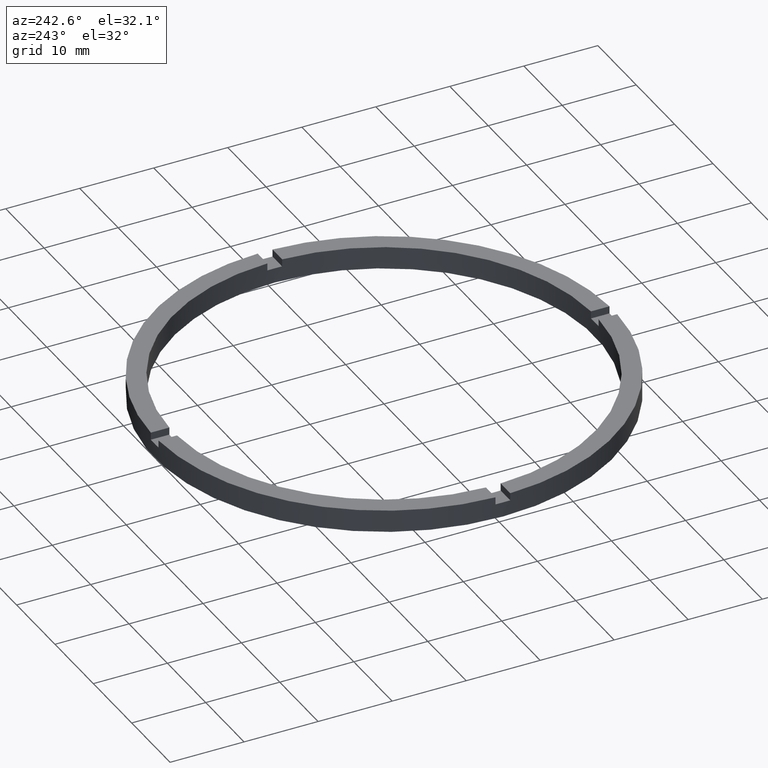
[diagram: clean part render]
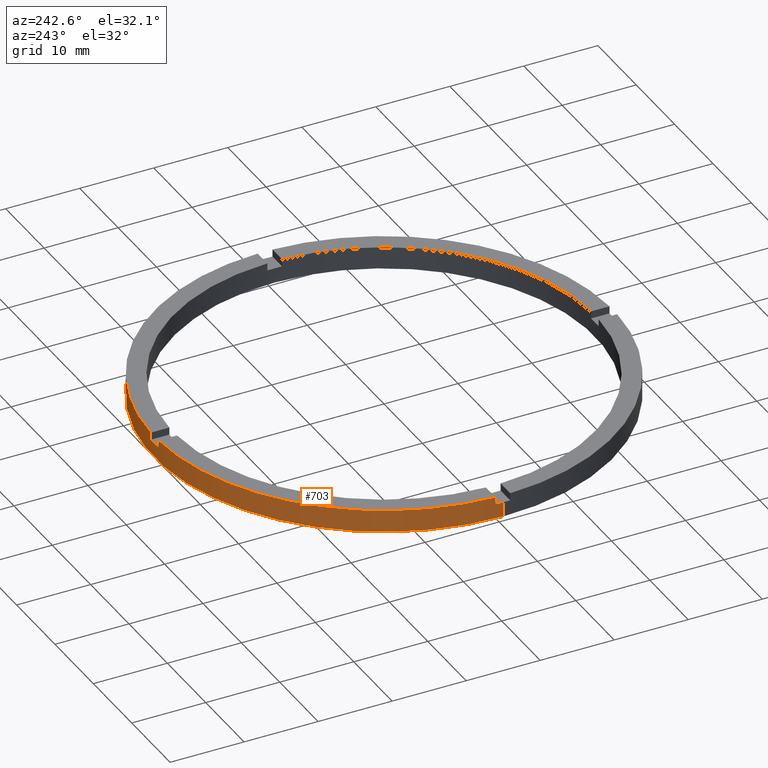
[diagram: same view with one face highlighted and labeled with its STEP entity id]
A machine part, auxiliary view. The second image highlights one B-rep face of the part: STEP entity #703.
In plain terms, the highlighted cylindrical surface (partial cylindrical patch) has radius 31 mm, axis along (-0, -0, -1).
Its self-contained STEP definition (entity closure, byte-faithful):
#12 = CARTESIAN_POINT ( 'NONE',  ( -31.00000000000000000, 0.000000000000000000, 0.000000000000000000 ) ) ;
#13 = DIRECTION ( 'NONE',  ( 0.000000000000000000, 0.000000000000000000, 1.000000000000000000 ) ) ;
#14 = DIRECTION ( 'NONE',  ( -0.000000000000000000, -0.000000000000000000, -1.000000000000000000 ) ) ;
#30 = VERTEX_POINT ( 'NONE', #80 ) ;
#32 = CARTESIAN_POINT ( 'NONE',  ( 0.000000000000000000, 0.000000000000000000, 3.000000000000000000 ) ) ;
#44 = VERTEX_POINT ( 'NONE', #271 ) ;
#45 = EDGE_CURVE ( 'NONE', #569, #309, #778, .T. ) ;
#67 = ORIENTED_EDGE ( 'NONE', *, *, #774, .F. ) ;
#72 = EDGE_CURVE ( 'NONE', #661, #672, #528, .T. ) ;
#73 = AXIS2_PLACEMENT_3D ( 'NONE', #764, #297, #100 ) ;
#76 = DIRECTION ( 'NONE',  ( 0.000000000000000000, 0.000000000000000000, 1.000000000000000000 ) ) ;
#80 = CARTESIAN_POINT ( 'NONE',  ( 31.00000000000000000, 3.796405077356795115E-15, 0.000000000000000000 ) ) ;
#86 = CARTESIAN_POINT ( 'NONE',  ( 0.9999999999999754641, 30.98386676965933617, 3.000000000000000000 ) ) ;
#91 = EDGE_CURVE ( 'NONE', #44, #672, #522, .T. ) ;
#100 = DIRECTION ( 'NONE',  ( 1.000000000000000000, 0.000000000000000000, 0.000000000000000000 ) ) ;
#106 = CARTESIAN_POINT ( 'NONE',  ( 0.9999999999999754641, 30.98386676965933617, 2.000000000000000000 ) ) ;
#115 = CARTESIAN_POINT ( 'NONE',  ( 0.000000000000000000, 0.000000000000000000, 0.000000000000000000 ) ) ;
#122 = DIRECTION ( 'NONE',  ( 0.000000000000000000, 0.000000000000000000, 1.000000000000000000 ) ) ;
#143 = CARTESIAN_POINT ( 'NONE',  ( -1.000000000000024425, 30.98386676965933617, 3.000000000000000000 ) ) ;
#146 = CIRCLE ( 'NONE', #73, 31.00000000000000000 ) ;
#151 = DIRECTION ( 'NONE',  ( -0.000000000000000000, -0.000000000000000000, -1.000000000000000000 ) ) ;
#156 = CARTESIAN_POINT ( 'NONE',  ( 0.000000000000000000, 0.000000000000000000, 3.000000000000000000 ) ) ;
#158 = AXIS2_PLACEMENT_3D ( 'NONE', #300, #597, #634 ) ;
#163 = ORIENTED_EDGE ( 'NONE', *, *, #416, .T. ) ;
#164 = AXIS2_PLACEMENT_3D ( 'NONE', #32, #350, #387 ) ;
#170 = CYLINDRICAL_SURFACE ( 'NONE', #545, 31.00000000000000000 ) ;
#173 = LINE ( 'NONE', #454, #447 ) ;
#174 = CIRCLE ( 'NONE', #649, 31.00000000000000000 ) ;
#176 = ORIENTED_EDGE ( 'NONE', *, *, #72, .F. ) ;
#180 = VERTEX_POINT ( 'NONE', #263 ) ;
#184 = CARTESIAN_POINT ( 'NONE',  ( 0.9999999999999754641, 30.98386676965933617, 3.000000000000000000 ) ) ;
#189 = VERTEX_POINT ( 'NONE', #571 ) ;
#198 = ORIENTED_EDGE ( 'NONE', *, *, #216, .T. ) ;
#204 = ORIENTED_EDGE ( 'NONE', *, *, #228, .T. ) ;
#209 = ORIENTED_EDGE ( 'NONE', *, *, #91, .T. ) ;
#216 = EDGE_CURVE ( 'NONE', #180, #30, #553, .T. ) ;
#228 = EDGE_CURVE ( 'NONE', #322, #245, #531, .T. ) ;
#236 = DIRECTION ( 'NONE',  ( 1.000000000000000000, 0.000000000000000000, 0.000000000000000000 ) ) ;
#240 = CARTESIAN_POINT ( 'NONE',  ( 0.000000000000000000, 0.000000000000000000, 3.000000000000000000 ) ) ;
#245 = VERTEX_POINT ( 'NONE', #86 ) ;
#247 = DIRECTION ( 'NONE',  ( -1.000000000000000000, 0.000000000000000000, 0.000000000000000000 ) ) ;
#262 = DIRECTION ( 'NONE',  ( 1.000000000000000000, 0.000000000000000000, 0.000000000000000000 ) ) ;
#263 = CARTESIAN_POINT ( 'NONE',  ( 31.00000000000000000, 3.796405077356795115E-15, 2.000000000000000000 ) ) ;
#267 = VECTOR ( 'NONE', #504, 1000.000000000000000 ) ;
#271 = CARTESIAN_POINT ( 'NONE',  ( -30.98386676965933617, 0.9999999999999744649, 2.000000000000000000 ) ) ;
#280 = VECTOR ( 'NONE', #122, 1000.000000000000000 ) ;
#297 = DIRECTION ( 'NONE',  ( 0.000000000000000000, -0.000000000000000000, 1.000000000000000000 ) ) ;
#300 = CARTESIAN_POINT ( 'NONE',  ( 0.000000000000000000, 0.000000000000000000, 2.000000000000000000 ) ) ;
#303 = AXIS2_PLACEMENT_3D ( 'NONE', #684, #620, #741 ) ;
#309 = VERTEX_POINT ( 'NONE', #12 ) ;
#311 = VERTEX_POINT ( 'NONE', #376 ) ;
#312 = EDGE_CURVE ( 'NONE', #30, #309, #381, .T. ) ;
#322 = VERTEX_POINT ( 'NONE', #106 ) ;
#333 = LINE ( 'NONE', #755, #769 ) ;
#350 = DIRECTION ( 'NONE',  ( 0.000000000000000000, 0.000000000000000000, 1.000000000000000000 ) ) ;
#376 = CARTESIAN_POINT ( 'NONE',  ( 30.98386676965933972, 0.9999999999998412381, 2.000000000000000000 ) ) ;
#381 = CIRCLE ( 'NONE', #608, 31.00000000000000000 ) ;
#387 = DIRECTION ( 'NONE',  ( 1.000000000000000000, 0.000000000000000000, 0.000000000000000000 ) ) ;
#399 = CARTESIAN_POINT ( 'NONE',  ( -30.98386676965933617, 0.9999999999999744649, 3.000000000000000000 ) ) ;
#402 = ORIENTED_EDGE ( 'NONE', *, *, #642, .F. ) ;
#412 = VERTEX_POINT ( 'NONE', #698 ) ;
#416 = EDGE_CURVE ( 'NONE', #661, #189, #333, .T. ) ;
#425 = ORIENTED_EDGE ( 'NONE', *, *, #696, .F. ) ;
#426 = FACE_OUTER_BOUND ( 'NONE', #650, .T. ) ;
#441 = CARTESIAN_POINT ( 'NONE',  ( -31.00000000000000000, 0.000000000000000000, 3.000000000000000000 ) ) ;
#447 = VECTOR ( 'NONE', #14, 1000.000000000000000 ) ;
#454 = CARTESIAN_POINT ( 'NONE',  ( 30.98386676965933972, 0.9999999999998412381, 3.000000000000000000 ) ) ;
#478 = CARTESIAN_POINT ( 'NONE',  ( -31.00000000000000000, 0.000000000000000000, 2.000000000000000000 ) ) ;
#486 = ORIENTED_EDGE ( 'NONE', *, *, #45, .F. ) ;
#492 = ORIENTED_EDGE ( 'NONE', *, *, #565, .T. ) ;
#504 = DIRECTION ( 'NONE',  ( -0.000000000000000000, -0.000000000000000000, -1.000000000000000000 ) ) ;
#508 = CARTESIAN_POINT ( 'NONE',  ( 31.00000000000000000, 3.796405077356795115E-15, 3.000000000000000000 ) ) ;
#519 = VECTOR ( 'NONE', #570, 1000.000000000000000 ) ;
#522 = LINE ( 'NONE', #567, #280 ) ;
#528 = CIRCLE ( 'NONE', #164, 31.00000000000000000 ) ;
#531 = LINE ( 'NONE', #184, #760 ) ;
#545 = AXIS2_PLACEMENT_3D ( 'NONE', #240, #151, #247 ) ;
#553 = LINE ( 'NONE', #508, #267 ) ;
#563 = ORIENTED_EDGE ( 'NONE', *, *, #736, .F. ) ;
#565 = EDGE_CURVE ( 'NONE', #412, #311, #173, .T. ) ;
#567 = CARTESIAN_POINT ( 'NONE',  ( -30.98386676965933617, 0.9999999999999744649, 3.000000000000000000 ) ) ;
#569 = VERTEX_POINT ( 'NONE', #478 ) ;
#570 = DIRECTION ( 'NONE',  ( -0.000000000000000000, -0.000000000000000000, -1.000000000000000000 ) ) ;
#571 = CARTESIAN_POINT ( 'NONE',  ( -1.000000000000024425, 30.98386676965933617, 2.000000000000000000 ) ) ;
#597 = DIRECTION ( 'NONE',  ( 0.000000000000000000, 0.000000000000000000, 1.000000000000000000 ) ) ;
#608 = AXIS2_PLACEMENT_3D ( 'NONE', #115, #76, #262 ) ;
#620 = DIRECTION ( 'NONE',  ( 0.000000000000000000, 0.000000000000000000, 1.000000000000000000 ) ) ;
#630 = DIRECTION ( 'NONE',  ( 0.000000000000000000, 0.000000000000000000, 1.000000000000000000 ) ) ;
#634 = DIRECTION ( 'NONE',  ( 1.000000000000000000, 0.000000000000000000, 0.000000000000000000 ) ) ;
#642 = EDGE_CURVE ( 'NONE', #44, #569, #663, .T. ) ;
#643 = ORIENTED_EDGE ( 'NONE', *, *, #312, .T. ) ;
#649 = AXIS2_PLACEMENT_3D ( 'NONE', #156, #630, #236 ) ;
#650 = EDGE_LOOP ( 'NONE', ( #563, #198, #643, #486, #402, #209, #176, #163, #425, #204, #67, #492 ) ) ;
#661 = VERTEX_POINT ( 'NONE', #143 ) ;
#663 = CIRCLE ( 'NONE', #303, 31.00000000000000000 ) ;
#667 = CIRCLE ( 'NONE', #158, 31.00000000000000000 ) ;
#672 = VERTEX_POINT ( 'NONE', #399 ) ;
#684 = CARTESIAN_POINT ( 'NONE',  ( 0.000000000000000000, 0.000000000000000000, 2.000000000000000000 ) ) ;
#696 = EDGE_CURVE ( 'NONE', #322, #189, #146, .T. ) ;
#698 = CARTESIAN_POINT ( 'NONE',  ( 30.98386676965933972, 0.9999999999998412381, 3.000000000000000000 ) ) ;
#703 = ADVANCED_FACE ( 'NONE', ( #426 ), #170, .T. ) ;
#736 = EDGE_CURVE ( 'NONE', #180, #311, #667, .T. ) ;
#741 = DIRECTION ( 'NONE',  ( 1.000000000000000000, 0.000000000000000000, 0.000000000000000000 ) ) ;
#743 = DIRECTION ( 'NONE',  ( -0.000000000000000000, -0.000000000000000000, -1.000000000000000000 ) ) ;
#755 = CARTESIAN_POINT ( 'NONE',  ( -1.000000000000024425, 30.98386676965933617, 3.000000000000000000 ) ) ;
#760 = VECTOR ( 'NONE', #13, 1000.000000000000000 ) ;
#764 = CARTESIAN_POINT ( 'NONE',  ( 0.000000000000000000, 0.000000000000000000, 2.000000000000000000 ) ) ;
#769 = VECTOR ( 'NONE', #743, 1000.000000000000000 ) ;
#774 = EDGE_CURVE ( 'NONE', #412, #245, #174, .T. ) ;
#778 = LINE ( 'NONE', #441, #519 ) ;